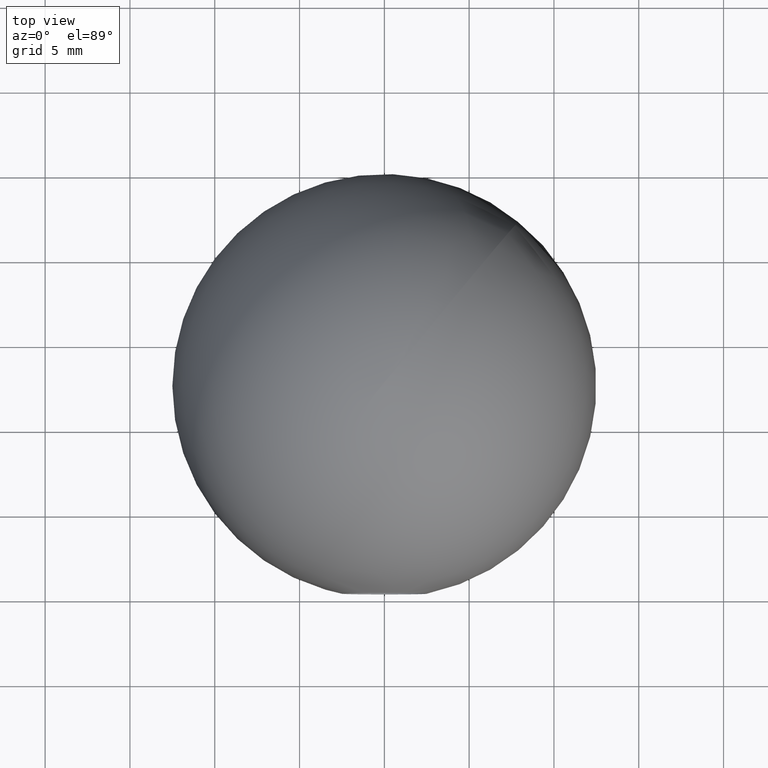
[diagram: clean part render]
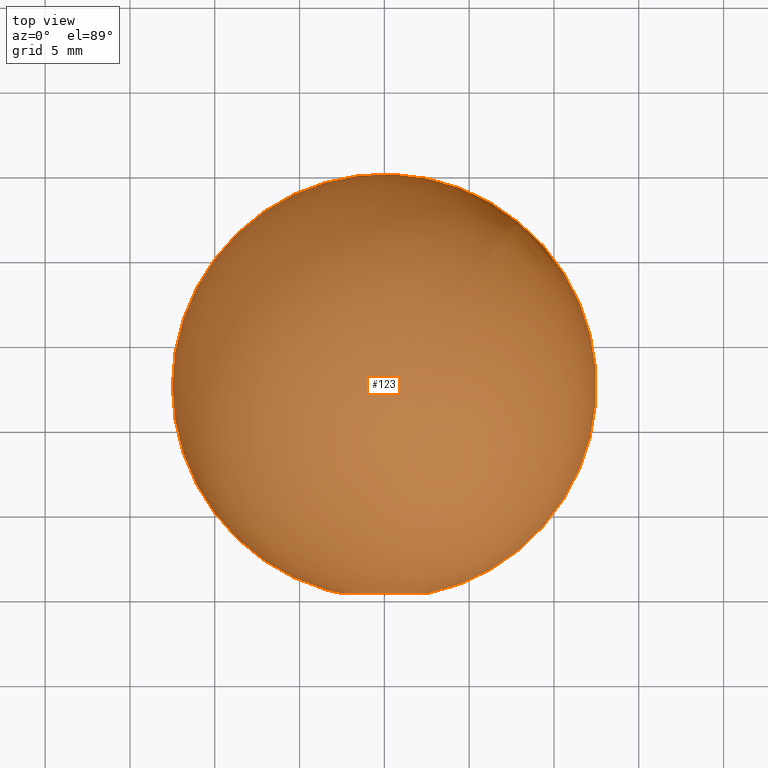
[diagram: same view with one face highlighted and labeled with its STEP entity id]
A machine part, top view. The second image highlights one B-rep face of the part: STEP entity #123.
In plain terms, the highlighted spherical surface has radius 12.5 mm.
Its self-contained STEP definition (entity closure, byte-faithful):
#6 = CARTESIAN_POINT ( 'NONE',  ( 0.000000000000000000, 0.2525512860841062079, 0.000000000000000000 ) ) ;
#12 = SPHERICAL_SURFACE ( 'NONE', #59, 12.50000000000000000 ) ;
#19 = DIRECTION ( 'NONE',  ( -1.000000000000000000, -1.387778780781445676E-16, 0.000000000000000000 ) ) ;
#28 = CARTESIAN_POINT ( 'NONE',  ( 0.000000000000000000, 0.2525512860841062079, 2.499999999999988454 ) ) ;
#59 = AXIS2_PLACEMENT_3D ( 'NONE', #113, #121, #19 ) ;
#63 = DIRECTION ( 'NONE',  ( -0.000000000000000000, -1.000000000000000000, -0.000000000000000000 ) ) ;
#66 = CIRCLE ( 'NONE', #81, 2.499999999999988454 ) ;
#79 = DIRECTION ( 'NONE',  ( 0.000000000000000000, 0.000000000000000000, 1.000000000000000000 ) ) ;
#81 = AXIS2_PLACEMENT_3D ( 'NONE', #6, #63, #79 ) ;
#97 = ORIENTED_EDGE ( 'NONE', *, *, #134, .F. ) ;
#101 = FACE_OUTER_BOUND ( 'NONE', #107, .T. ) ;
#107 = EDGE_LOOP ( 'NONE', ( #97 ) ) ;
#113 = CARTESIAN_POINT ( 'NONE',  ( -6.933347799794072061E-32, 12.50000000000000000, 0.000000000000000000 ) ) ;
#120 = VERTEX_POINT ( 'NONE', #28 ) ;
#121 = DIRECTION ( 'NONE',  ( -0.000000000000000000, 0.000000000000000000, -1.000000000000000000 ) ) ;
#123 = ADVANCED_FACE ( 'NONE', ( #101 ), #12, .T. ) ;
#134 = EDGE_CURVE ( 'NONE', #120, #120, #66, .T. ) ;